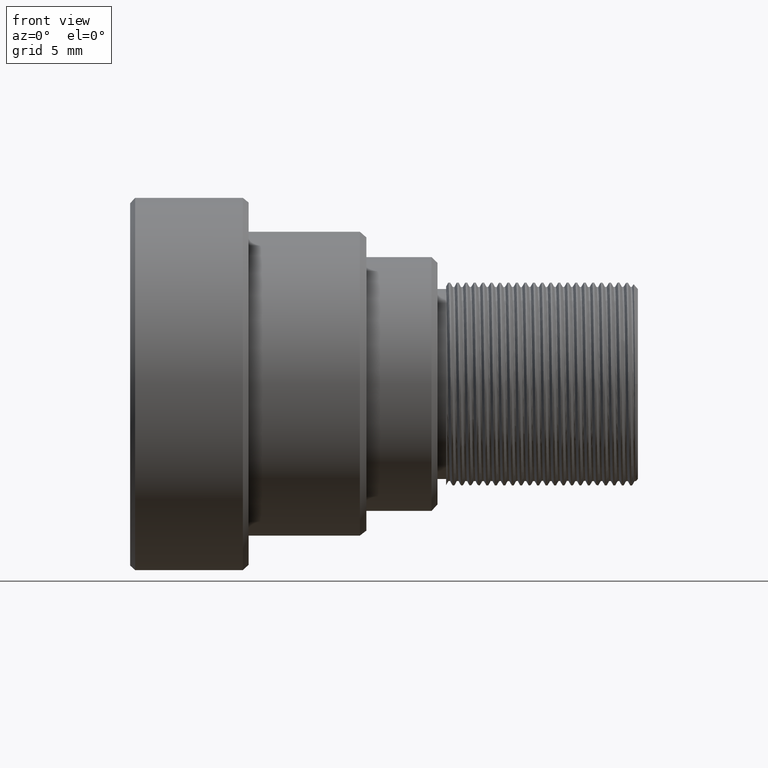
[diagram: clean part render]
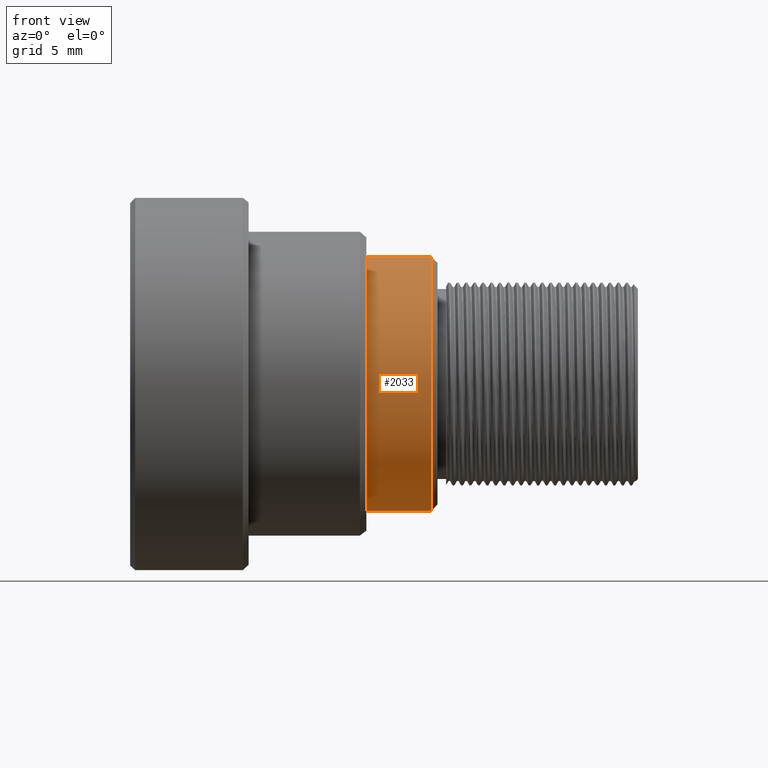
[diagram: same view with one face highlighted and labeled with its STEP entity id]
A machine part, front view. The second image highlights one B-rep face of the part: STEP entity #2033.
In plain terms, the highlighted cylindrical surface (bore or boss wall) has radius 7.5 mm, axis along (-1, 0, 0).
Its self-contained STEP definition (entity closure, byte-faithful):
#332 = DIRECTION ( 'NONE',  ( 0.000000000000000000, 0.000000000000000000, 1.000000000000000000 ) ) ;
#919 = EDGE_CURVE ( 'NONE', #4339, #4339, #1570, .T. ) ;
#1194 = CARTESIAN_POINT ( 'NONE',  ( -12.19408545025999935, 0.000000000000000000, 0.000000000000000000 ) ) ;
#1570 = CIRCLE ( 'NONE', #7011, 7.500000000000000000 ) ;
#1673 = EDGE_CURVE ( 'NONE', #5753, #5753, #3579, .T. ) ;
#2033 = ADVANCED_FACE ( 'NONE', ( #9612, #7425 ), #2945, .T. ) ;
#2223 = DIRECTION ( 'NONE',  ( -1.000000000000000000, 0.000000000000000000, 0.000000000000000000 ) ) ;
#2563 = DIRECTION ( 'NONE',  ( -1.000000000000000000, 0.000000000000000000, 0.000000000000000000 ) ) ;
#2862 = ORIENTED_EDGE ( 'NONE', *, *, #1673, .T. ) ;
#2945 = CYLINDRICAL_SURFACE ( 'NONE', #9194, 7.500000000000000000 ) ;
#3094 = DIRECTION ( 'NONE',  ( 1.000000000000000000, -0.000000000000000000, -0.000000000000000000 ) ) ;
#3579 = CIRCLE ( 'NONE', #4827, 7.500000000000000000 ) ;
#3884 = EDGE_LOOP ( 'NONE', ( #2862 ) ) ;
#4339 = VERTEX_POINT ( 'NONE', #5025 ) ;
#4747 = CARTESIAN_POINT ( 'NONE',  ( -16.03933062471000071, 0.000000000000000000, 0.000000000000000000 ) ) ;
#4827 = AXIS2_PLACEMENT_3D ( 'NONE', #4747, #3094, #332 ) ;
#5025 = CARTESIAN_POINT ( 'NONE',  ( -12.19408545025999935, 0.000000000000000000, 7.500000000000000000 ) ) ;
#5179 = DIRECTION ( 'NONE',  ( 0.000000000000000000, 0.000000000000000000, 1.000000000000000000 ) ) ;
#5753 = VERTEX_POINT ( 'NONE', #8195 ) ;
#6017 = ORIENTED_EDGE ( 'NONE', *, *, #919, .T. ) ;
#6143 = EDGE_LOOP ( 'NONE', ( #6017 ) ) ;
#7011 = AXIS2_PLACEMENT_3D ( 'NONE', #1194, #2563, #9410 ) ;
#7425 = FACE_OUTER_BOUND ( 'NONE', #6143, .T. ) ;
#8195 = CARTESIAN_POINT ( 'NONE',  ( -16.03933062471000071, 0.000000000000000000, 7.500000000000000000 ) ) ;
#8885 = CARTESIAN_POINT ( 'NONE',  ( 1.500000000000000000, 0.000000000000000000, 0.000000000000000000 ) ) ;
#9194 = AXIS2_PLACEMENT_3D ( 'NONE', #8885, #2223, #5179 ) ;
#9410 = DIRECTION ( 'NONE',  ( 0.000000000000000000, 0.000000000000000000, 1.000000000000000000 ) ) ;
#9612 = FACE_OUTER_BOUND ( 'NONE', #3884, .T. ) ;